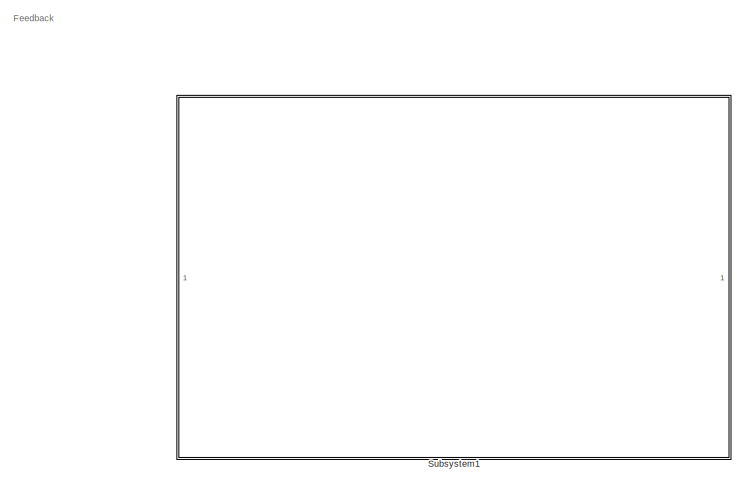
[diagram: root canvas - part 1/4, top left region]
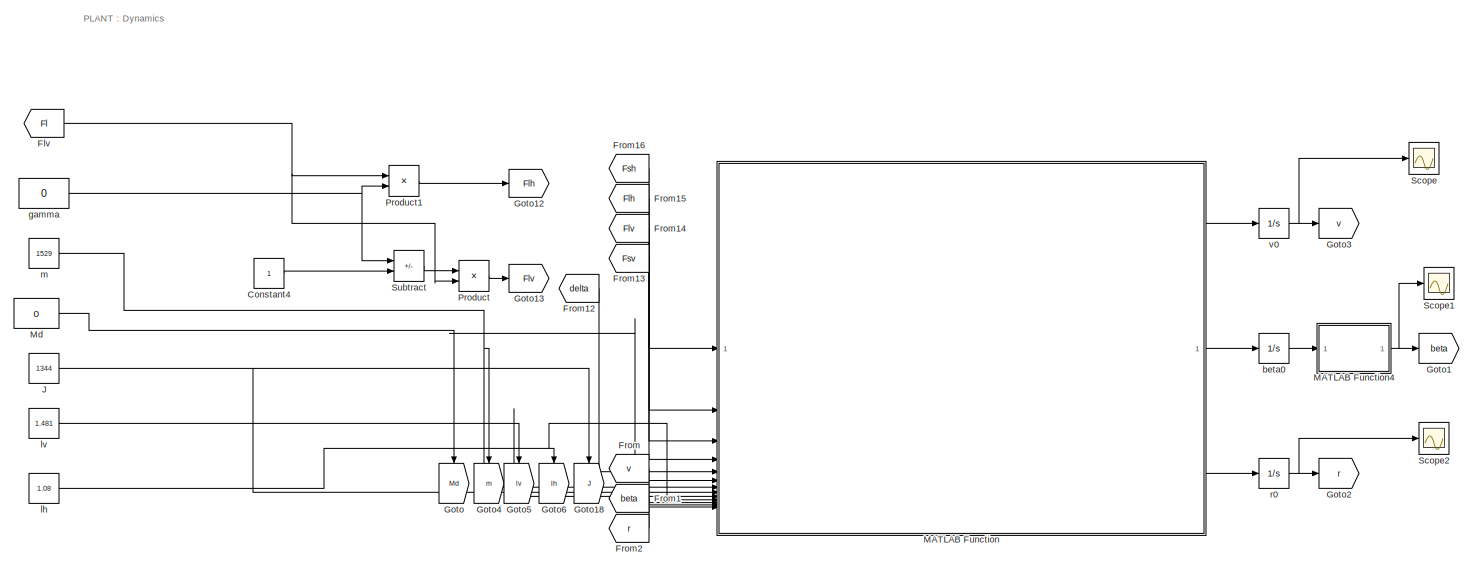
[diagram: root canvas - part 2/4, top right region]
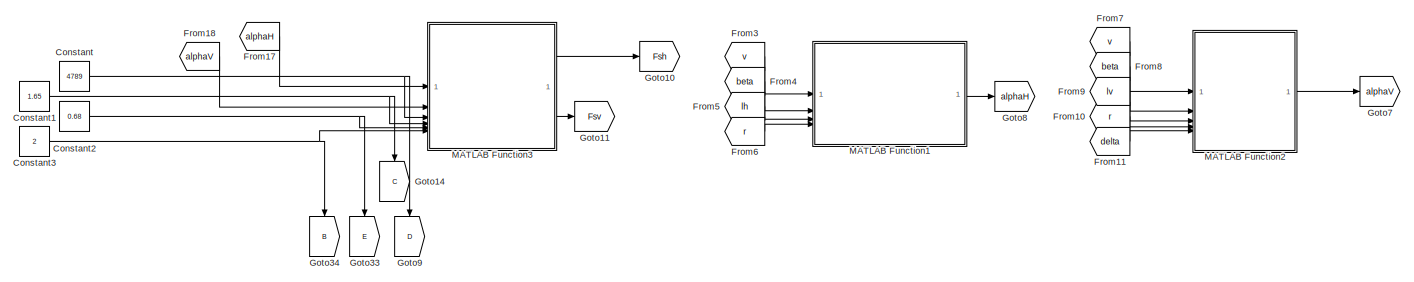
[diagram: root canvas - part 3/4, middle right region]
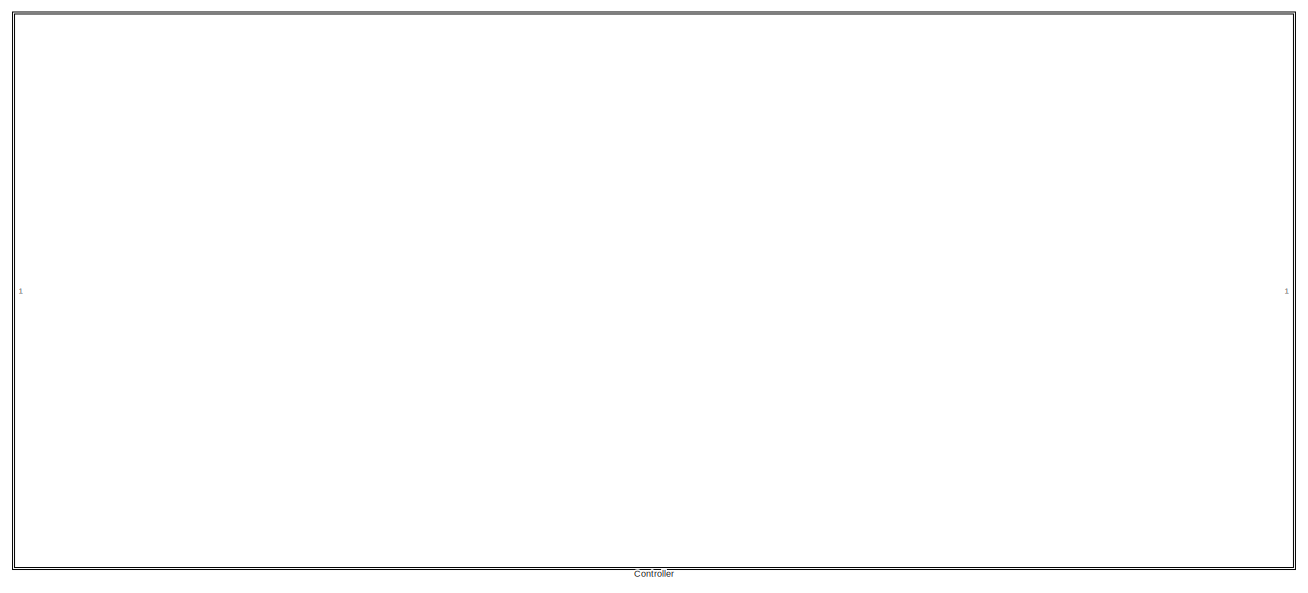
[diagram: root canvas - part 4/4, bottom left region]
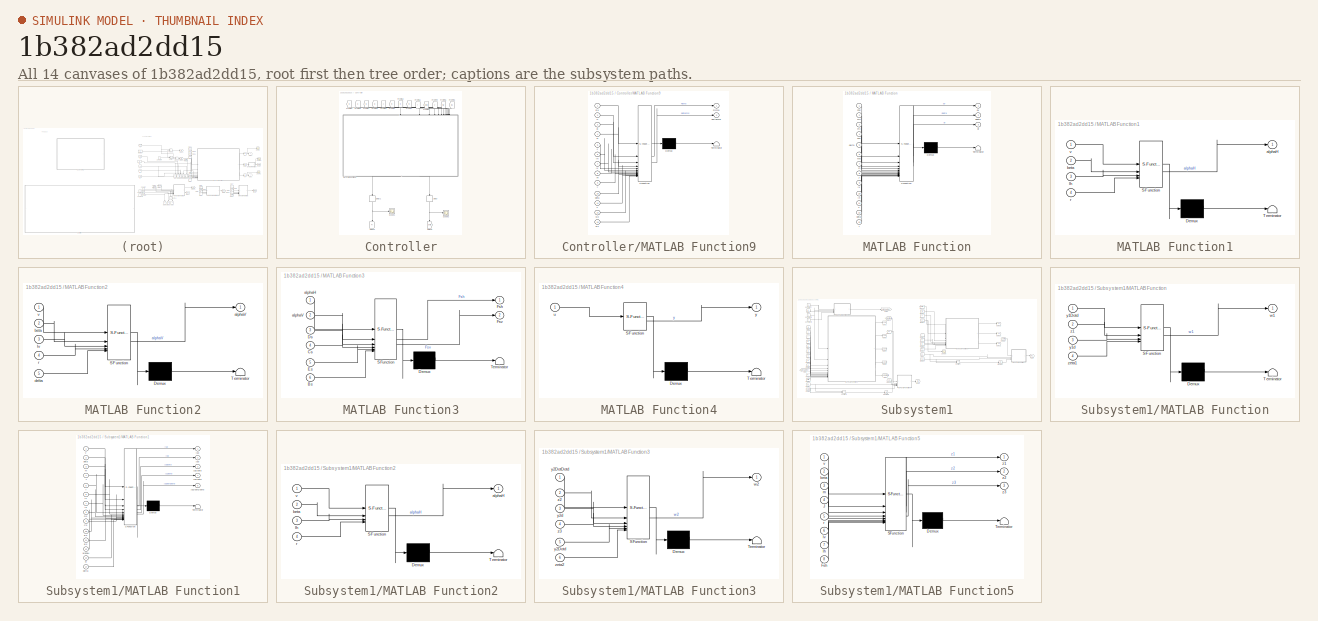
[diagram: thumbnail index - all 14 canvases of the model, root first then tree order]
MODEL slx_1b382ad2dd15
KIND model
CONFIG AbsTol = auto
CONFIG EnableMultiTasking = off
CONFIG FixedStep = 0.01
CONFIG MaxStep = auto
CONFIG MinStep = auto
CONFIG RelTol = 1e-3
CONFIG SampleTimeConstraint = Unconstrained
CONFIG SolverName = FixedStepAuto
CONFIG StartTime = 0.0
CONFIG StopTime = 500
BLOCK [Constant] Constant
  Value = 4789
BLOCK [Constant] Constant1
  Value = 1.65
BLOCK [Constant] Constant2
  Value = 0.68
BLOCK [Constant] Constant3
  Value = 2
BLOCK [Constant] Constant4
BLOCK [SubSystem] Controller
BLOCK [Delay] Controller/Delay
  DelayLength = 1
  InputPortMap = u0
  NameLocation = left
BLOCK [Delay] Controller/Delay1
  DelayLength = 1
  InputPortMap = u0
  NameLocation = left
BLOCK [From] Controller/From45
  GotoTag = w1
  NameLocation = left
  TagVisibility = global
BLOCK [From] Controller/From46
  GotoTag = w2
  NameLocation = left
  TagVisibility = global
BLOCK [From] Controller/From49
  GotoTag = v
  NameLocation = left
  TagVisibility = global
BLOCK [From] Controller/From50
  GotoTag = beta
  NameLocation = left
  TagVisibility = global
BLOCK [From] Controller/From51
  GotoTag = r
  NameLocation = left
  TagVisibility = global
BLOCK [From] Controller/From52
  GotoTag = m
  NameLocation = left
  TagVisibility = global
BLOCK [From] Controller/From53
  GotoTag = lv
  NameLocation = left
  TagVisibility = global
BLOCK [From] Controller/From54
  GotoTag = lh
  NameLocation = left
  TagVisibility = global
BLOCK [From] Controller/From55
  GotoTag = J
  NameLocation = left
  TagVisibility = global
BLOCK [From] Controller/From56
  GotoTag = D
  NameLocation = left
  TagVisibility = global
BLOCK [From] Controller/From57
  GotoTag = B
  NameLocation = left
  TagVisibility = global
BLOCK [From] Controller/From58
  GotoTag = C
  NameLocation = left
  TagVisibility = global
BLOCK [From] Controller/From59
  GotoTag = E
  NameLocation = left
  TagVisibility = global
BLOCK [Goto] Controller/Goto29
  GotoTag = Fl
  NameLocation = left
  TagVisibility = global
BLOCK [Goto] Controller/Goto30
  GotoTag = delta
  NameLocation = left
  TagVisibility = global
BLOCK [SubSystem] Controller/MATLAB Function9
  ErrorFcn = Stateflow.Translate.translate
  NameLocation = left
  PermitHierarchicalResolution = ExplicitOnly
  SFBlockType = MATLAB Function
  TreatAsAtomicUnit = on
BLOCK [Demux] Controller/MATLAB Function9/ Demux 
  Outputs = 1
BLOCK [S-Function] Controller/MATLAB Function9/ SFunction 
  EnableBusSupport = on
  FunctionName = sf_sfun
  PortCounts = [13 3]
  SFcnIsStateOwnerBlock = off
  SFunctionDeploymentMode = off
  Tag = Stateflow S-Function 10
BLOCK [Terminator] Controller/MATLAB Function9/ Terminator 
BLOCK [Inport] Controller/MATLAB Function9/B
  Port = 3
BLOCK [Inport] Controller/MATLAB Function9/C
  Port = 2
BLOCK [Inport] Controller/MATLAB Function9/D
  Port = 4
BLOCK [Inport] Controller/MATLAB Function9/Ek
BLOCK [Outport] Controller/MATLAB Function9/Flcmd
BLOCK [Inport] Controller/MATLAB Function9/J
  Port = 5
BLOCK [Inport] Controller/MATLAB Function9/beta
  Port = 10
BLOCK [Outport] Controller/MATLAB Function9/deltacmd
  Port = 2
BLOCK [Inport] Controller/MATLAB Function9/lh
  Port = 6
BLOCK [Inport] Controller/MATLAB Function9/lv
  Port = 7
BLOCK [Inport] Controller/MATLAB Function9/m
  Port = 8
BLOCK [Inport] Controller/MATLAB Function9/r
  Port = 9
BLOCK [Inport] Controller/MATLAB Function9/v
  Port = 11
BLOCK [Inport] Controller/MATLAB Function9/w1
  Port = 13
BLOCK [Inport] Controller/MATLAB Function9/w2
  Port = 12
BLOCK [Scope] Controller/Scope1
  Floating = off
  NumInputPorts = 1
  ScopeSpecificationString = Simulink.scopes.TimeScopeBlockCfg('CurrentConfiguration', extmgr.ConfigurationSet(extmgr.Configuration('Core','General UI',true),extmgr.Configuration('Core','Source UI',true),extmgr.Configuration('Sources','WiredSimulink',true,'DataLoggingVariableName','ScopeData1'),extmgr.Configuration('Visuals','Time Domain',true,'SerializedDisplays',{struct('MinYLimReal','-0.10992','MaxYLimReal','0.03744','YLab...<+1436ch>
BLOCK [Scope] Controller/Scope2
  Floating = off
  NumInputPorts = 1
  ScopeSpecificationString = Simulink.scopes.TimeScopeBlockCfg('CurrentConfiguration', extmgr.ConfigurationSet(extmgr.Configuration('Core','General UI',true),extmgr.Configuration('Core','Source UI',true),extmgr.Configuration('Sources','WiredSimulink',true,'DataLoggingVariableName','ScopeData2'),extmgr.Configuration('Visuals','Time Domain',true,'SerializedDisplays',{struct('MinYLimReal','-0.77436','MaxYLimReal','6.96925','YLab...<+1437ch>
BLOCK [From] Flv
  GotoTag = Fl
  TagVisibility = global
BLOCK [From] From
  GotoTag = v
  TagVisibility = global
BLOCK [From] From1
  GotoTag = beta
  TagVisibility = global
BLOCK [From] From10
  GotoTag = r
  TagVisibility = global
BLOCK [From] From11
  GotoTag = delta
  TagVisibility = global
BLOCK [From] From12
  GotoTag = delta
  TagVisibility = global
BLOCK [From] From13
  GotoTag = Fsv
  TagVisibility = global
BLOCK [From] From14
  GotoTag = Flv
BLOCK [From] From15
  GotoTag = Flh
BLOCK [From] From16
  GotoTag = Fsh
  TagVisibility = global
BLOCK [From] From17
  GotoTag = alphaH
  TagVisibility = global
BLOCK [From] From18
  GotoTag = alphaV
  TagVisibility = global
BLOCK [From] From2
  GotoTag = r
  TagVisibility = global
BLOCK [From] From3
  GotoTag = v
  TagVisibility = global
BLOCK [From] From4
  GotoTag = beta
  TagVisibility = global
BLOCK [From] From5
  GotoTag = lh
  TagVisibility = global
BLOCK [From] From6
  GotoTag = r
  TagVisibility = global
BLOCK [From] From7
  GotoTag = v
  TagVisibility = global
BLOCK [From] From8
  GotoTag = beta
  TagVisibility = global
BLOCK [From] From9
  GotoTag = lv
  TagVisibility = global
BLOCK [Goto] Goto
  GotoTag = Md
  NameLocation = left
  TagVisibility = global
BLOCK [Goto] Goto1
  GotoTag = beta
  TagVisibility = global
BLOCK [Goto] Goto10
  GotoTag = Fsh
  TagVisibility = global
BLOCK [Goto] Goto11
  GotoTag = Fsv
  TagVisibility = global
BLOCK [Goto] Goto12
  GotoTag = Flh
BLOCK [Goto] Goto13
  GotoTag = Flv
BLOCK [Goto] Goto14
  GotoTag = C
  NameLocation = left
  TagVisibility = global
BLOCK [Goto] Goto18
  GotoTag = J
  NameLocation = left
  TagVisibility = global
BLOCK [Goto] Goto2
  GotoTag = r
  TagVisibility = global
BLOCK [Goto] Goto3
  GotoTag = v
  TagVisibility = global
BLOCK [Goto] Goto33
  GotoTag = E
  NameLocation = left
  TagVisibility = global
BLOCK [Goto] Goto34
  GotoTag = B
  NameLocation = left
  TagVisibility = global
BLOCK [Goto] Goto4
  GotoTag = m
  NameLocation = left
  TagVisibility = global
BLOCK [Goto] Goto5
  GotoTag = lv
  NameLocation = left
  TagVisibility = global
BLOCK [Goto] Goto6
  GotoTag = lh
  NameLocation = left
  TagVisibility = global
BLOCK [Goto] Goto7
  GotoTag = alphaV
  TagVisibility = global
BLOCK [Goto] Goto8
  GotoTag = alphaH
  TagVisibility = global
BLOCK [Goto] Goto9
  GotoTag = D
  NameLocation = left
  TagVisibility = global
BLOCK [Constant] J
  Value = 1344
BLOCK [SubSystem] MATLAB Function
  ErrorFcn = Stateflow.Translate.translate
  PermitHierarchicalResolution = ExplicitOnly
  SFBlockType = MATLAB Function
  TreatAsAtomicUnit = on
BLOCK [Demux] MATLAB Function/ Demux 
  Outputs = 1
BLOCK [S-Function] MATLAB Function/ SFunction 
  EnableBusSupport = on
  FunctionName = sf_sfun
  PortCounts = [13 4]
  SFcnIsStateOwnerBlock = off
  SFunctionDeploymentMode = off
  Tag = Stateflow S-Function 2
BLOCK [Terminator] MATLAB Function/ Terminator 
BLOCK [Inport] MATLAB Function/Flh
  Port = 2
BLOCK [Inport] MATLAB Function/Flv
  Port = 3
BLOCK [Inport] MATLAB Function/Fsh
BLOCK [Inport] MATLAB Function/Fsv
  Port = 4
BLOCK [Inport] MATLAB Function/J
  Port = 8
BLOCK [Inport] MATLAB Function/Md
  Port = 6
BLOCK [Inport] MATLAB Function/beta
  Port = 12
BLOCK [Outport] MATLAB Function/dbeta
  Port = 2
BLOCK [Inport] MATLAB Function/delta
  Port = 5
BLOCK [Outport] MATLAB Function/dr
  Port = 3
BLOCK [Outport] MATLAB Function/dv
BLOCK [Inport] MATLAB Function/lh
  Port = 10
BLOCK [Inport] MATLAB Function/lv
  Port = 9
BLOCK [Inport] MATLAB Function/m
  Port = 7
BLOCK [Inport] MATLAB Function/r
  Port = 13
BLOCK [Inport] MATLAB Function/v
  Port = 11
BLOCK [SubSystem] MATLAB Function1
  ErrorFcn = Stateflow.Translate.translate
  PermitHierarchicalResolution = ExplicitOnly
  SFBlockType = MATLAB Function
  TreatAsAtomicUnit = on
BLOCK [Demux] MATLAB Function1/ Demux 
  Outputs = 1
BLOCK [S-Function] MATLAB Function1/ SFunction 
  EnableBusSupport = on
  FunctionName = sf_sfun
  PortCounts = [4 2]
  SFcnIsStateOwnerBlock = off
  SFunctionDeploymentMode = off
  Tag = Stateflow S-Function 1
BLOCK [Terminator] MATLAB Function1/ Terminator 
BLOCK [Outport] MATLAB Function1/alphaH
BLOCK [Inport] MATLAB Function1/beta
  Port = 2
BLOCK [Inport] MATLAB Function1/lh
  Port = 3
BLOCK [Inport] MATLAB Function1/r
  Port = 4
BLOCK [Inport] MATLAB Function1/v
BLOCK [SubSystem] MATLAB Function2
  ErrorFcn = Stateflow.Translate.translate
  PermitHierarchicalResolution = ExplicitOnly
  SFBlockType = MATLAB Function
  TreatAsAtomicUnit = on
BLOCK [Demux] MATLAB Function2/ Demux 
  Outputs = 1
BLOCK [S-Function] MATLAB Function2/ SFunction 
  EnableBusSupport = on
  FunctionName = sf_sfun
  PortCounts = [5 2]
  SFcnIsStateOwnerBlock = off
  SFunctionDeploymentMode = off
  Tag = Stateflow S-Function 3
BLOCK [Terminator] MATLAB Function2/ Terminator 
BLOCK [Outport] MATLAB Function2/alphaV
BLOCK [Inport] MATLAB Function2/beta
  Port = 2
BLOCK [Inport] MATLAB Function2/delta
  Port = 5
BLOCK [Inport] MATLAB Function2/lv
  Port = 3
BLOCK [Inport] MATLAB Function2/r
  Port = 4
BLOCK [Inport] MATLAB Function2/v
BLOCK [SubSystem] MATLAB Function3
  ErrorFcn = Stateflow.Translate.translate
  PermitHierarchicalResolution = ExplicitOnly
  SFBlockType = MATLAB Function
  TreatAsAtomicUnit = on
BLOCK [Demux] MATLAB Function3/ Demux 
  Outputs = 1
BLOCK [S-Function] MATLAB Function3/ SFunction 
  EnableBusSupport = on
  FunctionName = sf_sfun
  PortCounts = [6 3]
  SFcnIsStateOwnerBlock = off
  SFunctionDeploymentMode = off
  Tag = Stateflow S-Function 4
BLOCK [Terminator] MATLAB Function3/ Terminator 
BLOCK [Inport] MATLAB Function3/Bs
  Port = 6
BLOCK [Inport] MATLAB Function3/Cs
  Port = 4
BLOCK [Inport] MATLAB Function3/Ds
  Port = 3
BLOCK [Inport] MATLAB Function3/Es
  Port = 5
BLOCK [Outport] MATLAB Function3/Fsh
BLOCK [Outport] MATLAB Function3/Fsv
  Port = 2
BLOCK [Inport] MATLAB Function3/alphaH
BLOCK [Inport] MATLAB Function3/alphaV
  Port = 2
BLOCK [SubSystem] MATLAB Function4
  ErrorFcn = Stateflow.Translate.translate
  NameLocation = top
  PermitHierarchicalResolution = ExplicitOnly
  SFBlockType = MATLAB Function
  TreatAsAtomicUnit = on
BLOCK [Demux] MATLAB Function4/ Demux 
  Outputs = 1
BLOCK [S-Function] MATLAB Function4/ SFunction 
  EnableBusSupport = on
  FunctionName = sf_sfun
  PortCounts = [1 2]
  SFcnIsStateOwnerBlock = off
  SFunctionDeploymentMode = off
  Tag = Stateflow S-Function 8
BLOCK [Terminator] MATLAB Function4/ Terminator 
BLOCK [Inport] MATLAB Function4/u
BLOCK [Outport] MATLAB Function4/y
BLOCK [Constant] Md
  Value = 0
BLOCK [Product] Product
BLOCK [Product] Product1
BLOCK [Scope] Scope
  Floating = off
  NumInputPorts = 1
  ScopeSpecificationString = Simulink.scopes.TimeScopeBlockCfg('CurrentConfiguration', extmgr.ConfigurationSet(extmgr.Configuration('Core','General UI',true),extmgr.Configuration('Core','Source UI',true),extmgr.Configuration('Sources','WiredSimulink',true,'DataLoggingVariableName','ScopeData2'),extmgr.Configuration('Visuals','Time Domain',true,'SerializedDisplays',{struct('MinYLimReal','-7010873145054766039040.00000','MaxYLim...<+1571ch>
BLOCK [Scope] Scope1
  Floating = off
  NumInputPorts = 1
  ScopeSpecificationString = Simulink.scopes.TimeScopeBlockCfg('CurrentConfiguration', extmgr.ConfigurationSet(extmgr.Configuration('Core','General UI',true),extmgr.Configuration('Core','Source UI',true),extmgr.Configuration('Sources','WiredSimulink',true,'DataLoggingVariableName','ScopeData1'),extmgr.Configuration('Visuals','Time Domain',true,'SerializedDisplays',{struct('MinYLimReal','-0.22752','MaxYLimReal','0.07863','YLab...<+1475ch>
BLOCK [Scope] Scope2
  Floating = off
  NumInputPorts = 1
  ScopeSpecificationString = Simulink.scopes.TimeScopeBlockCfg('CurrentConfiguration', extmgr.ConfigurationSet(extmgr.Configuration('Core','General UI',true),extmgr.Configuration('Core','Source UI',true),extmgr.Configuration('Sources','WiredSimulink',true,'DataLoggingVariableName','ScopeData3'),extmgr.Configuration('Visuals','Time Domain',true,'SerializedDisplays',{struct('MinYLimReal','-28818924527946670538752.00000','MaxYLi...<+1558ch>
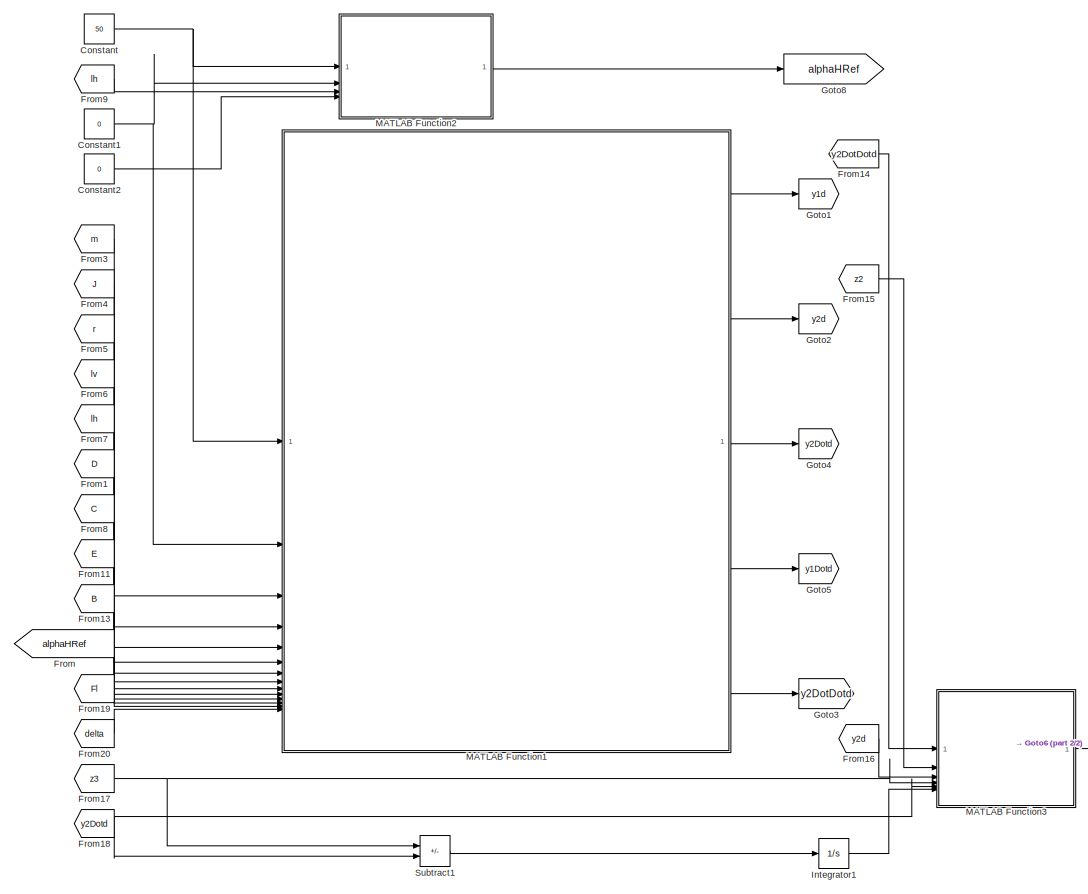
[diagram: Subsystem1 - part 1/2, left side, full height]
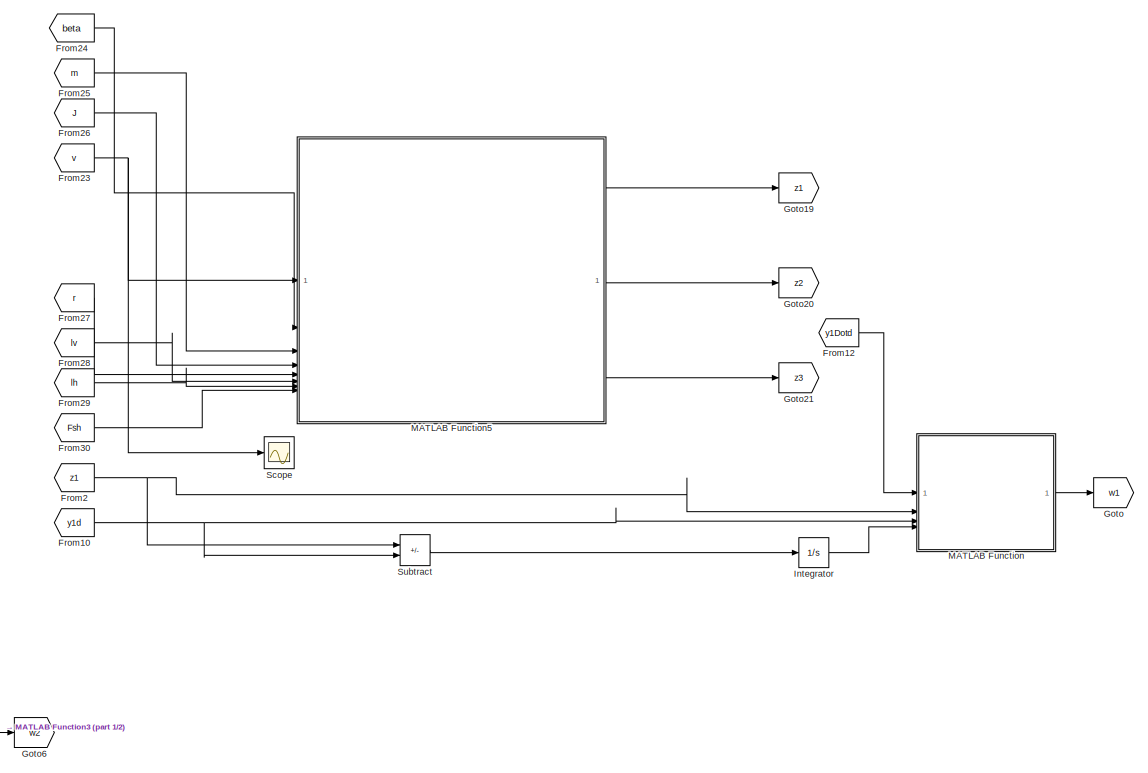
[diagram: Subsystem1 - part 2/2, right side, full height]
BLOCK [SubSystem] Subsystem1
BLOCK [Constant] Subsystem1/Constant
  Value = 50
BLOCK [Constant] Subsystem1/Constant1
  Value = 0
BLOCK [Constant] Subsystem1/Constant2
  Value = 0
BLOCK [From] Subsystem1/From
  GotoTag = alphaHRef
  TagVisibility = global
BLOCK [From] Subsystem1/From1
  GotoTag = D
  TagVisibility = global
BLOCK [From] Subsystem1/From10
  GotoTag = y1d
  TagVisibility = global
BLOCK [From] Subsystem1/From11
  GotoTag = E
  TagVisibility = global
BLOCK [From] Subsystem1/From12
  GotoTag = y1Dotd
  TagVisibility = global
BLOCK [From] Subsystem1/From13
  GotoTag = B
  TagVisibility = global
BLOCK [From] Subsystem1/From14
  GotoTag = y2DotDotd
  TagVisibility = global
BLOCK [From] Subsystem1/From15
  GotoTag = z2
  TagVisibility = global
BLOCK [From] Subsystem1/From16
  GotoTag = y2d
  TagVisibility = global
BLOCK [From] Subsystem1/From17
  GotoTag = z3
  TagVisibility = global
BLOCK [From] Subsystem1/From18
  GotoTag = y2Dotd
  TagVisibility = global
BLOCK [From] Subsystem1/From19
  GotoTag = Fl
  TagVisibility = global
BLOCK [From] Subsystem1/From2
  GotoTag = z1
  TagVisibility = global
BLOCK [From] Subsystem1/From20
  GotoTag = delta
  TagVisibility = global
BLOCK [From] Subsystem1/From23
  GotoTag = v
  TagVisibility = global
BLOCK [From] Subsystem1/From24
  GotoTag = beta
  TagVisibility = global
BLOCK [From] Subsystem1/From25
  GotoTag = m
  TagVisibility = global
BLOCK [From] Subsystem1/From26
  GotoTag = J
  TagVisibility = global
BLOCK [From] Subsystem1/From27
  GotoTag = r
  TagVisibility = global
BLOCK [From] Subsystem1/From28
  GotoTag = lv
  TagVisibility = global
BLOCK [From] Subsystem1/From29
  GotoTag = lh
  TagVisibility = global
BLOCK [From] Subsystem1/From3
  GotoTag = m
  TagVisibility = global
BLOCK [From] Subsystem1/From30
  GotoTag = Fsh
  TagVisibility = global
BLOCK [From] Subsystem1/From4
  GotoTag = J
  TagVisibility = global
BLOCK [From] Subsystem1/From5
  GotoTag = r
  TagVisibility = global
BLOCK [From] Subsystem1/From6
  GotoTag = lv
  TagVisibility = global
BLOCK [From] Subsystem1/From7
  GotoTag = lh
  TagVisibility = global
BLOCK [From] Subsystem1/From8
  GotoTag = C
  TagVisibility = global
BLOCK [From] Subsystem1/From9
  GotoTag = lh
  TagVisibility = global
BLOCK [Goto] Subsystem1/Goto
  GotoTag = w1
  TagVisibility = global
BLOCK [Goto] Subsystem1/Goto1
  GotoTag = y1d
  TagVisibility = global
BLOCK [Goto] Subsystem1/Goto19
  GotoTag = z1
  TagVisibility = global
BLOCK [Goto] Subsystem1/Goto2
  GotoTag = y2d
  TagVisibility = global
BLOCK [Goto] Subsystem1/Goto20
  GotoTag = z2
  TagVisibility = global
BLOCK [Goto] Subsystem1/Goto21
  GotoTag = z3
  TagVisibility = global
BLOCK [Goto] Subsystem1/Goto3
  GotoTag = y2DotDotd
  TagVisibility = global
BLOCK [Goto] Subsystem1/Goto4
  GotoTag = y2Dotd
  TagVisibility = global
BLOCK [Goto] Subsystem1/Goto5
  GotoTag = y1Dotd
  TagVisibility = global
BLOCK [Goto] Subsystem1/Goto6
  GotoTag = w2
  TagVisibility = global
BLOCK [Goto] Subsystem1/Goto8
  GotoTag = alphaHRef
  TagVisibility = global
BLOCK [Integrator] Subsystem1/Integrator
BLOCK [Integrator] Subsystem1/Integrator1
BLOCK [SubSystem] Subsystem1/MATLAB Function
  ErrorFcn = Stateflow.Translate.translate
  PermitHierarchicalResolution = ExplicitOnly
  SFBlockType = MATLAB Function
  TreatAsAtomicUnit = on
BLOCK [Demux] Subsystem1/MATLAB Function/ Demux 
  Outputs = 1
BLOCK [S-Function] Subsystem1/MATLAB Function/ SFunction 
  EnableBusSupport = on
  FunctionName = sf_sfun
  PortCounts = [4 2]
  SFcnIsStateOwnerBlock = off
  SFunctionDeploymentMode = off
  Tag = Stateflow S-Function 9
BLOCK [Terminator] Subsystem1/MATLAB Function/ Terminator 
BLOCK [Outport] Subsystem1/MATLAB Function/w1
BLOCK [Inport] Subsystem1/MATLAB Function/y1Dotd
BLOCK [Inport] Subsystem1/MATLAB Function/y1d
  Port = 3
BLOCK [Inport] Subsystem1/MATLAB Function/z1
  Port = 2
BLOCK [Inport] Subsystem1/MATLAB Function/zeta1
  Port = 4
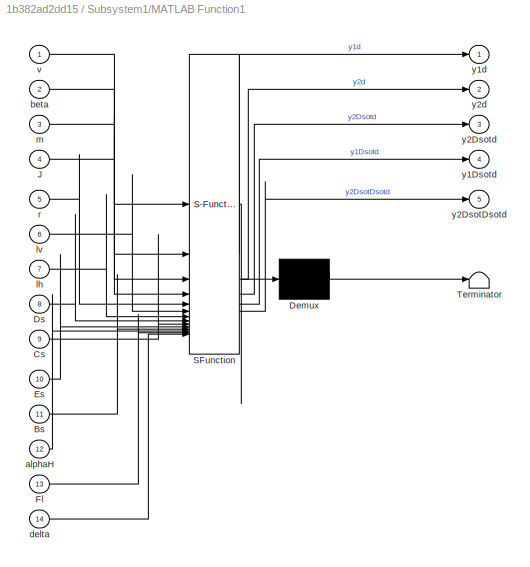
BLOCK [SubSystem] Subsystem1/MATLAB Function1
  ErrorFcn = Stateflow.Translate.translate
  PermitHierarchicalResolution = ExplicitOnly
  SFBlockType = MATLAB Function
  TreatAsAtomicUnit = on
BLOCK [Demux] Subsystem1/MATLAB Function1/ Demux 
  Outputs = 1
BLOCK [S-Function] Subsystem1/MATLAB Function1/ SFunction 
  EnableBusSupport = on
  FunctionName = sf_sfun
  PortCounts = [14 6]
  SFcnIsStateOwnerBlock = off
  SFunctionDeploymentMode = off
  Tag = Stateflow S-Function 5
BLOCK [Terminator] Subsystem1/MATLAB Function1/ Terminator 
BLOCK [Inport] Subsystem1/MATLAB Function1/Bs
  Port = 11
BLOCK [Inport] Subsystem1/MATLAB Function1/Cs
  Port = 9
BLOCK [Inport] Subsystem1/MATLAB Function1/Ds
  Port = 8
BLOCK [Inport] Subsystem1/MATLAB Function1/Es
  Port = 10
BLOCK [Inport] Subsystem1/MATLAB Function1/Fl
  Port = 13
BLOCK [Inport] Subsystem1/MATLAB Function1/J
  Port = 4
BLOCK [Inport] Subsystem1/MATLAB Function1/alphaH
  Port = 12
BLOCK [Inport] Subsystem1/MATLAB Function1/beta
  Port = 2
BLOCK [Inport] Subsystem1/MATLAB Function1/delta
  Port = 14
BLOCK [Inport] Subsystem1/MATLAB Function1/lh
  Port = 7
BLOCK [Inport] Subsystem1/MATLAB Function1/lv
  Port = 6
BLOCK [Inport] Subsystem1/MATLAB Function1/m
  Port = 3
BLOCK [Inport] Subsystem1/MATLAB Function1/r
  Port = 5
BLOCK [Inport] Subsystem1/MATLAB Function1/v
BLOCK [Outport] Subsystem1/MATLAB Function1/y1Dsotd
  Port = 4
BLOCK [Outport] Subsystem1/MATLAB Function1/y1d
BLOCK [Outport] Subsystem1/MATLAB Function1/y2DsotDsotd
  Port = 5
BLOCK [Outport] Subsystem1/MATLAB Function1/y2Dsotd
  Port = 3
BLOCK [Outport] Subsystem1/MATLAB Function1/y2d
  Port = 2
BLOCK [SubSystem] Subsystem1/MATLAB Function2
  ErrorFcn = Stateflow.Translate.translate
  PermitHierarchicalResolution = ExplicitOnly
  SFBlockType = MATLAB Function
  TreatAsAtomicUnit = on
BLOCK [Demux] Subsystem1/MATLAB Function2/ Demux 
  Outputs = 1
BLOCK [S-Function] Subsystem1/MATLAB Function2/ SFunction 
  EnableBusSupport = on
  FunctionName = sf_sfun
  PortCounts = [4 2]
  SFcnIsStateOwnerBlock = off
  SFunctionDeploymentMode = off
  Tag = Stateflow S-Function 7
BLOCK [Terminator] Subsystem1/MATLAB Function2/ Terminator 
BLOCK [Outport] Subsystem1/MATLAB Function2/alphaH
BLOCK [Inport] Subsystem1/MATLAB Function2/beta
  Port = 2
BLOCK [Inport] Subsystem1/MATLAB Function2/lh
  Port = 3
BLOCK [Inport] Subsystem1/MATLAB Function2/r
  Port = 4
BLOCK [Inport] Subsystem1/MATLAB Function2/v
BLOCK [SubSystem] Subsystem1/MATLAB Function3
  ErrorFcn = Stateflow.Translate.translate
  PermitHierarchicalResolution = ExplicitOnly
  SFBlockType = MATLAB Function
  TreatAsAtomicUnit = on
BLOCK [Demux] Subsystem1/MATLAB Function3/ Demux 
  Outputs = 1
BLOCK [S-Function] Subsystem1/MATLAB Function3/ SFunction 
  EnableBusSupport = on
  FunctionName = sf_sfun
  PortCounts = [6 2]
  SFcnIsStateOwnerBlock = off
  SFunctionDeploymentMode = off
  Tag = Stateflow S-Function 11
BLOCK [Terminator] Subsystem1/MATLAB Function3/ Terminator 
BLOCK [Outport] Subsystem1/MATLAB Function3/w2
BLOCK [Inport] Subsystem1/MATLAB Function3/y2DotDotd
BLOCK [Inport] Subsystem1/MATLAB Function3/y2Dotd
  Port = 5
BLOCK [Inport] Subsystem1/MATLAB Function3/y2d
  Port = 3
BLOCK [Inport] Subsystem1/MATLAB Function3/z2
  Port = 2
BLOCK [Inport] Subsystem1/MATLAB Function3/z3
  Port = 4
BLOCK [Inport] Subsystem1/MATLAB Function3/zeta2
  Port = 6
BLOCK [SubSystem] Subsystem1/MATLAB Function5
  ErrorFcn = Stateflow.Translate.translate
  PermitHierarchicalResolution = ExplicitOnly
  SFBlockType = MATLAB Function
  TreatAsAtomicUnit = on
BLOCK [Demux] Subsystem1/MATLAB Function5/ Demux 
  Outputs = 1
BLOCK [S-Function] Subsystem1/MATLAB Function5/ SFunction 
  EnableBusSupport = on
  FunctionName = sf_sfun
  PortCounts = [8 4]
  SFcnIsStateOwnerBlock = off
  SFunctionDeploymentMode = off
  Tag = Stateflow S-Function 6
BLOCK [Terminator] Subsystem1/MATLAB Function5/ Terminator 
BLOCK [Inport] Subsystem1/MATLAB Function5/Fsh
  Port = 8
BLOCK [Inport] Subsystem1/MATLAB Function5/J
  Port = 4
BLOCK [Inport] Subsystem1/MATLAB Function5/beta
  Port = 2
BLOCK [Inport] Subsystem1/MATLAB Function5/lh
  Port = 7
BLOCK [Inport] Subsystem1/MATLAB Function5/lv
  Port = 6
BLOCK [Inport] Subsystem1/MATLAB Function5/m
  Port = 3
BLOCK [Inport] Subsystem1/MATLAB Function5/r
  Port = 5
BLOCK [Inport] Subsystem1/MATLAB Function5/v
BLOCK [Outport] Subsystem1/MATLAB Function5/z1
BLOCK [Outport] Subsystem1/MATLAB Function5/z2
  Port = 2
BLOCK [Outport] Subsystem1/MATLAB Function5/z3
  Port = 3
BLOCK [Scope] Subsystem1/Scope
  Floating = off
  NumInputPorts = 1
  ScopeSpecificationString = Simulink.scopes.TimeScopeBlockCfg('CurrentConfiguration', extmgr.ConfigurationSet(extmgr.Configuration('Core','General UI',true),extmgr.Configuration('Core','Source UI',true),extmgr.Configuration('Sources','WiredSimulink',true,'DataLoggingVariableName','ScopeData1'),extmgr.Configuration('Visuals','Time Domain',true,'SerializedDisplays',{struct('MinYLimReal','-1860569883714235662336.00000','MaxYLim...<+1598ch>
BLOCK [Sum] Subsystem1/Subtract
  IconShape = rectangular
  Inputs = +-
BLOCK [Sum] Subsystem1/Subtract1
  IconShape = rectangular
  Inputs = +-
BLOCK [Sum] Subtract
  IconShape = rectangular
  Inputs = -+
BLOCK [Integrator] beta0
  InitialCondition = 0.9
BLOCK [Constant] gamma
  Value = 0
BLOCK [Constant] lh
  Value = 1.08
BLOCK [Constant] lv
  Value = 1.481
BLOCK [Constant] m
  Value = 1529
BLOCK [Integrator] r0
  InitialCondition = 0.1
BLOCK [Integrator] v0
  InitialCondition = 0.1
ANNOTATION (root): Feedback
ANNOTATION (root): PLANT : Dynamics
NET Constant1:1 -> Goto14:1, MATLAB Function3:4
NET Constant2:1 -> Goto33:1, MATLAB Function3:5
NET Constant3:1 -> Goto34:1, MATLAB Function3:6
LINE Constant4:1 -> Subtract:2
NET Constant:1 -> Goto9:1, MATLAB Function3:3
NET Controller/Delay1:1 -> Controller/Goto29:1, Controller/Scope1:1
NET Controller/Delay:1 -> Controller/Goto30:1, Controller/Scope2:1
LINE Controller/From45:1 -> Controller/MATLAB Function9:13
LINE Controller/From46:1 -> Controller/MATLAB Function9:12
LINE Controller/From49:1 -> Controller/MATLAB Function9:11
LINE Controller/From50:1 -> Controller/MATLAB Function9:10
LINE Controller/From51:1 -> Controller/MATLAB Function9:9
LINE Controller/From52:1 -> Controller/MATLAB Function9:8
LINE Controller/From53:1 -> Controller/MATLAB Function9:7
LINE Controller/From54:1 -> Controller/MATLAB Function9:6
LINE Controller/From55:1 -> Controller/MATLAB Function9:5
LINE Controller/From56:1 -> Controller/MATLAB Function9:4
LINE Controller/From57:1 -> Controller/MATLAB Function9:3
LINE Controller/From58:1 -> Controller/MATLAB Function9:2
LINE Controller/From59:1 -> Controller/MATLAB Function9:1
LINE Controller/MATLAB Function9:1 -> Controller/Delay1:1
LINE Controller/MATLAB Function9:2 -> Controller/Delay:1
NET Flv:1 -> Product1:1, Product:2
LINE From10:1 -> MATLAB Function2:4
LINE From11:1 -> MATLAB Function2:5
LINE From12:1 -> MATLAB Function:5
LINE From13:1 -> MATLAB Function:4
LINE From14:1 -> MATLAB Function:3
LINE From15:1 -> MATLAB Function:2
LINE From16:1 -> MATLAB Function:1
LINE From17:1 -> MATLAB Function3:1
LINE From18:1 -> MATLAB Function3:2
LINE From1:1 -> MATLAB Function:12
LINE From2:1 -> MATLAB Function:13
LINE From3:1 -> MATLAB Function1:1
LINE From4:1 -> MATLAB Function1:2
LINE From5:1 -> MATLAB Function1:3
LINE From6:1 -> MATLAB Function1:4
LINE From7:1 -> MATLAB Function2:1
LINE From8:1 -> MATLAB Function2:2
LINE From9:1 -> MATLAB Function2:3
LINE From:1 -> MATLAB Function:11
NET J:1 -> Goto18:1, MATLAB Function:8
LINE MATLAB Function1:1 -> Goto8:1
LINE MATLAB Function2:1 -> Goto7:1
LINE MATLAB Function3:1 -> Goto10:1
LINE MATLAB Function3:2 -> Goto11:1
NET MATLAB Function4:1 -> Goto1:1, Scope1:1
LINE MATLAB Function:1 -> v0:1
LINE MATLAB Function:2 -> beta0:1
LINE MATLAB Function:3 -> r0:1
NET Md:1 -> Goto:1, MATLAB Function:6
LINE Product1:1 -> Goto12:1
LINE Product:1 -> Goto13:1
NET Subsystem1/Constant1:1 -> Subsystem1/MATLAB Function1:2, Subsystem1/MATLAB Function2:2
LINE Subsystem1/Constant2:1 -> Subsystem1/MATLAB Function2:4
NET Subsystem1/Constant:1 -> Subsystem1/MATLAB Function1:1, Subsystem1/MATLAB Function2:1
NET Subsystem1/From10:1 -> Subsystem1/MATLAB Function:3, Subsystem1/Subtract:2
LINE Subsystem1/From11:1 -> Subsystem1/MATLAB Function1:10
LINE Subsystem1/From12:1 -> Subsystem1/MATLAB Function:1
LINE Subsystem1/From13:1 -> Subsystem1/MATLAB Function1:11
LINE Subsystem1/From14:1 -> Subsystem1/MATLAB Function3:1
LINE Subsystem1/From15:1 -> Subsystem1/MATLAB Function3:2
LINE Subsystem1/From16:1 -> Subsystem1/MATLAB Function3:3
NET Subsystem1/From17:1 -> Subsystem1/MATLAB Function3:4, Subsystem1/Subtract1:1
NET Subsystem1/From18:1 -> Subsystem1/MATLAB Function3:5, Subsystem1/Subtract1:2
LINE Subsystem1/From19:1 -> Subsystem1/MATLAB Function1:13
LINE Subsystem1/From1:1 -> Subsystem1/MATLAB Function1:8
LINE Subsystem1/From20:1 -> Subsystem1/MATLAB Function1:14
NET Subsystem1/From23:1 -> Subsystem1/MATLAB Function5:1, Subsystem1/Scope:1
LINE Subsystem1/From24:1 -> Subsystem1/MATLAB Function5:2
LINE Subsystem1/From25:1 -> Subsystem1/MATLAB Function5:3
LINE Subsystem1/From26:1 -> Subsystem1/MATLAB Function5:4
LINE Subsystem1/From27:1 -> Subsystem1/MATLAB Function5:5
LINE Subsystem1/From28:1 -> Subsystem1/MATLAB Function5:6
LINE Subsystem1/From29:1 -> Subsystem1/MATLAB Function5:7
NET Subsystem1/From2:1 -> Subsystem1/MATLAB Function:2, Subsystem1/Subtract:1
LINE Subsystem1/From30:1 -> Subsystem1/MATLAB Function5:8
LINE Subsystem1/From3:1 -> Subsystem1/MATLAB Function1:3
LINE Subsystem1/From4:1 -> Subsystem1/MATLAB Function1:4
LINE Subsystem1/From5:1 -> Subsystem1/MATLAB Function1:5
LINE Subsystem1/From6:1 -> Subsystem1/MATLAB Function1:6
LINE Subsystem1/From7:1 -> Subsystem1/MATLAB Function1:7
LINE Subsystem1/From8:1 -> Subsystem1/MATLAB Function1:9
LINE Subsystem1/From9:1 -> Subsystem1/MATLAB Function2:3
LINE Subsystem1/From:1 -> Subsystem1/MATLAB Function1:12
LINE Subsystem1/Integrator1:1 -> Subsystem1/MATLAB Function3:6
LINE Subsystem1/Integrator:1 -> Subsystem1/MATLAB Function:4
LINE Subsystem1/MATLAB Function1:1 -> Subsystem1/Goto1:1
LINE Subsystem1/MATLAB Function1:2 -> Subsystem1/Goto2:1
LINE Subsystem1/MATLAB Function1:3 -> Subsystem1/Goto4:1
LINE Subsystem1/MATLAB Function1:4 -> Subsystem1/Goto5:1
LINE Subsystem1/MATLAB Function1:5 -> Subsystem1/Goto3:1
LINE Subsystem1/MATLAB Function2:1 -> Subsystem1/Goto8:1
LINE Subsystem1/MATLAB Function3:1 -> Subsystem1/Goto6:1
LINE Subsystem1/MATLAB Function5:1 -> Subsystem1/Goto19:1
LINE Subsystem1/MATLAB Function5:2 -> Subsystem1/Goto20:1
LINE Subsystem1/MATLAB Function5:3 -> Subsystem1/Goto21:1
LINE Subsystem1/MATLAB Function:1 -> Subsystem1/Goto:1
LINE Subsystem1/Subtract1:1 -> Subsystem1/Integrator1:1
LINE Subsystem1/Subtract:1 -> Subsystem1/Integrator:1
LINE Subtract:1 -> Product:1
LINE beta0:1 -> MATLAB Function4:1
NET gamma:1 -> Product1:2, Subtract:1
NET lh:1 -> Goto6:1, MATLAB Function:10
NET lv:1 -> Goto5:1, MATLAB Function:9
NET m:1 -> Goto4:1, MATLAB Function:7
NET r0:1 -> Goto2:1, Scope2:1
NET v0:1 -> Goto3:1, Scope:1
note: NET lines group one-source signal fan-out (src -> all destinations, sorted); 1:1 wires keep LINE
CHART Subsystem1/MATLAB Function5 states=1 transitions=1
  STATE_LABEL 'eML_blk_kernel()'
  STATE_LABEL 'SCRIPT:\nfunction [z1, z2, z3] = flatOutput_transform(v,beta,m,J,r,lv, lh, Fsh)\n\nz1 = v*cos(beta);\nz2 = v*sin(beta) - r*J/(m*lv);\nz3 = ((lv+lh)/(m*lv))*Fsh - v*r*cos(beta);\n'
CHART Subsystem1/MATLAB Function2 states=1 transitions=1
  STATE_LABEL 'eML_blk_kernel()'
  STATE_LABEL 'SCRIPT:\nfunction alphaH = cal_alphaH(v, beta, lh, r)\n\nalphaH = -atan((v*sin(beta)-lh*r)/(v*cos(beta)));\n'
CHART MATLAB Function4 states=1 transitions=1
  STATE_LABEL 'eML_blk_kernel()'
  STATE_LABEL 'SCRIPT:\nfunction y = fcn(u)\ny=mod(mod(u,2*pi)+2*pi,2*pi);\n%y = u;\n'
CHART Subsystem1/MATLAB Function states=1 transitions=1
  STATE_LABEL 'eML_blk_kernel()'
  STATE_LABEL 'SCRIPT:\nfunction w1 = w1Calc(y1Dotd, z1,y1d,zeta1)\n\nmu = 10;\nmubar = 10;\n\nw1 = y1Dotd-mu*(z1-y1d)-mubar*zeta1;\n'
CHART Controller/MATLAB Function9 states=1 transitions=1
  STATE_LABEL 'eML_blk_kernel()'
  STATE_LABEL 'SCRIPT:\nfunction [Flcmd, deltacmd] = flatControl_To_RealControl(Ek, C, B, D, J, lh, lv, m, r, beta, v, w2, w1)\n\n\n\ndeltacmd=((-2).*B.*C.*D.*J.^(-1).*lv.*v.*cos(beta)+(-2).*B.^2.*C.^2.*D.^2.*...\n  J.^(-1).*lv.^(-1).*(lh+lv).*m.^(-2).*(J+(-2).*lh.*lv.*m).*v.*cos ( ...\n  beta).*(v.^2+cos(beta).^2.*(lh.*r+(-1).*v.*sin(beta)).^2).^(-1)+(-2).* ...\n  B.^2.*C.^2.*D.^2.*lv.^(-1).*(lh+lv).*m.^(-2).*v.*cos(3....<+2038ch>'
CHART Subsystem1/MATLAB Function3 states=1 transitions=1
  STATE_LABEL 'eML_blk_kernel()'
  STATE_LABEL 'SCRIPT:\nfunction w2 = w2Calc(y2DotDotd,z2,y2d,z3,y2Dotd,zeta2)\n\nnu1 = 1200;\nnu2 = 60;\nnubar = 8000;\n\nw2 = y2DotDotd-nu1*(z2-y2d)-nu2*(z3-y2Dotd)-nubar*zeta2;\n'
CHART MATLAB Function1 states=1 transitions=1
  STATE_LABEL 'eML_blk_kernel()'
  STATE_LABEL 'SCRIPT:\nfunction alphaH = cal_alphaH(v, beta, lh, r)\n\nalphaH = -atan((v*sin(beta)-lh*r)/(v*cos(beta)));\n'
CHART MATLAB Function states=1 transitions=1
  STATE_LABEL 'eML_blk_kernel()'
  STATE_LABEL 'SCRIPT:\nfunction [dv, dbeta, dr] = Car_Inner_Model(Fsh,Flh, Flv, Fsv, delta, Md, m, J, lv, lh, v, beta, r)\n\n\ndv = (1/m)*(Fsv*sin(beta-delta)+Flv*cos(beta-delta)+Fsh*sin(beta)+Flh*cos(beta));\n\ndbeta = -r + (1/(m*v))*(Fsv*cos(beta-delta)-Flv*sin(beta-delta)+Fsh*cos(beta)-Flh*sin(beta));\n\ndr = (1/J)*(lv*(Fsv*cos(delta)+Flv*sin(delta))-lh*Fsh + Md);\n\nend'
CHART MATLAB Function2 states=1 transitions=1
  STATE_LABEL 'eML_blk_kernel()'
  STATE_LABEL 'SCRIPT:\nfunction alphaV = cal_alphaV(v, beta, lv, r, delta)\n\nalphaV = delta-atan((v*sin(beta)+lv*r)/(v*cos(beta)));\n'
CHART MATLAB Function3 states=1 transitions=1
  STATE_LABEL 'eML_blk_kernel()'
  STATE_LABEL 'SCRIPT:\nfunction [Fsh, Fsv] = cal_lateralForce(alphaH, alphaV, Ds,Cs, Es, Bs)\n\n%Es = 0;\nFsh = 2*Ds*(Cs*atan(Bs*alphaH));%sin(Cs*atan(Bs*alphaH-Es*(Bs*alphaH-atan(Bs*alphaH))));\n\nFsv = 2*Ds*(Cs*atan(Bs*alphaV));%sin(Cs*atan(Bs*alphaV-Es*(Bs*alphaV-atan(Bs*alphaV))));\n\n\n%Fsv = 2*Ds*sin(Cs*atan(Bs*alphaV-Es*(Bs*alphaV-atan(Bs*alphaV))));\n\n\n%Fsh = 2*Ds*sin(Cs*atan(Bs*alphaH-Es*(Bs*alphaH-atan(Bs*alpha...<+9ch>'
CHART Subsystem1/MATLAB Function1 states=1 transitions=1
  STATE_LABEL 'eML_blk_kernel()'
  STATE_LABEL 'SCRIPT:\nfunction [y1d, y2d, y2Dsotd, y1Dsotd, y2DsotDsotd] = flatOutput_transform(v,beta,m,J,r,lv, lh, Ds,Cs, Es, Bs, alphaH, Fl, delta)\n\n%Fsh = 2*Ds*sin(Cs*atan(Bs*alphaH-Es*(Bs*alphaH-atan(Bs*alphaH))));\nFsh = 2*Ds*(Cs*(Bs*alphaH));\n\ny1d = v*cos(beta);\ny2d = v*sin(beta) - r*J/(m*lv);\ny2Dsotd = ((lv+lh)/(m*lv))*Fsh - v*r*cos(beta);\n\n y1Dsotd =0; \n %m.^(-1).*(Fl+m.*r.*v.*sin(beta)+2.*Bs.*Cs.*Ds.*(...<+1475ch>'
CHART  states=0 transitions=0
CHART  states=0 transitions=0
CHART  states=0 transitions=0
CHART  states=0 transitions=0
CHART  states=0 transitions=0
CHART  states=0 transitions=0
CHART  states=0 transitions=0
CHART  states=0 transitions=0
CHART  states=0 transitions=0
CHART  states=0 transitions=0
CHART  states=0 transitions=0
